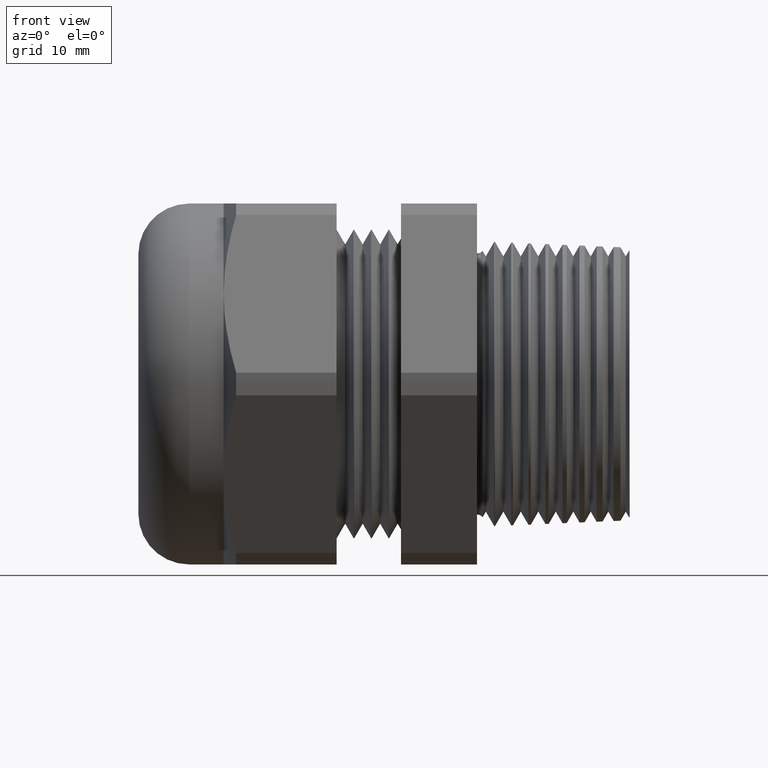
[diagram: clean part render]
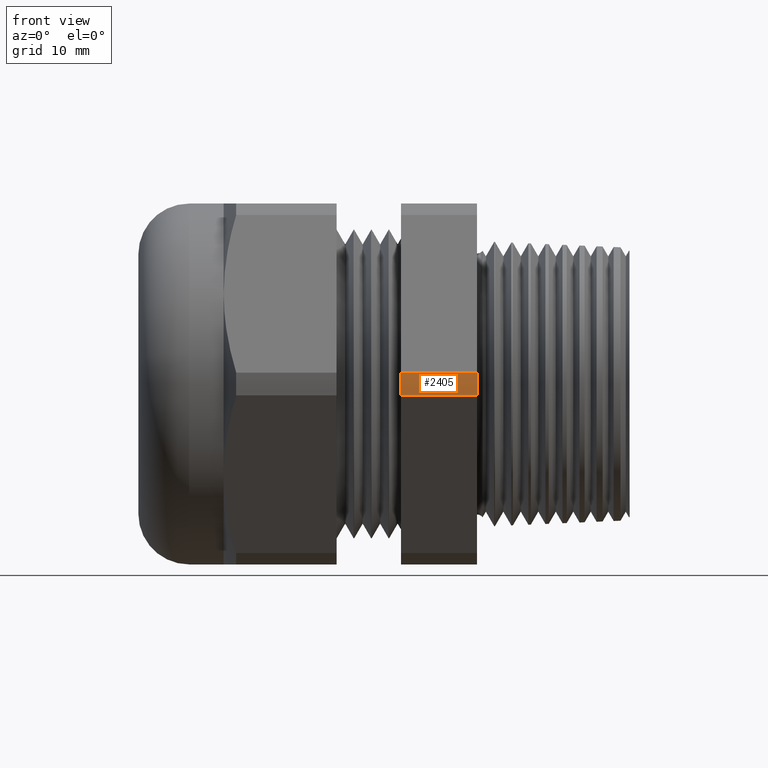
[diagram: same view with one face highlighted and labeled with its STEP entity id]
A machine part, front view. The second image highlights one B-rep face of the part: STEP entity #2405.
In plain terms, the highlighted cylindrical surface (partial cylindrical patch) has radius 18.4912 mm, axis along (-1, 0, 0).
Its self-contained STEP definition (entity closure, byte-faithful):
#302 = CARTESIAN_POINT ( 'NONE',  ( -0.2736318407960199300, -0.7268402752278256800, -0.04107571431805973800 ) ) ;
#348 = DIRECTION ( 'NONE',  ( 1.000000000000000000, 0.0000000000000000000, 0.0000000000000000000 ) ) ;
#349 = VECTOR ( 'NONE', #348, 39.37007874015748100 ) ;
#350 = CARTESIAN_POINT ( 'NONE',  ( -2.992185896283379200, -0.7268402752278255700, -0.04107571431805972400 ) ) ;
#351 = LINE ( 'NONE', #350, #349 ) ;
#352 = DIRECTION ( 'NONE',  ( 0.0000000000000000000, 0.0000000000000000000, 1.000000000000000000 ) ) ;
#353 = DIRECTION ( 'NONE',  ( -1.000000000000000000, 0.0000000000000000000, 0.0000000000000000000 ) ) ;
#354 = AXIS2_PLACEMENT_3D ( 'NONE', #356, #353, #352 ) ;
#355 = CYLINDRICAL_SURFACE ( 'NONE', #354, 0.7280000000000000900 ) ;
#356 = CARTESIAN_POINT ( 'NONE',  ( -0.7238591030180623300, 0.0000000000000000000, 0.0000000000000000000 ) ) ;
#357 = FACE_OUTER_BOUND ( 'NONE', #2407, .T. ) ;
#394 = DIRECTION ( 'NONE',  ( -1.000000000000000000, 0.0000000000000000000, 0.0000000000000000000 ) ) ;
#654 = DIRECTION ( 'NONE',  ( 0.0000000000000000000, 0.0000000000000000000, 1.000000000000000000 ) ) ;
#673 = CARTESIAN_POINT ( 'NONE',  ( 0.0000000000000000000, -0.7268402752278255700, -0.04107571431805972400 ) ) ;
#882 = CARTESIAN_POINT ( 'NONE',  ( 0.0000000000000000000, -0.7268402752278255700, 0.04107571431805941800 ) ) ;
#1565 = DIRECTION ( 'NONE',  ( 0.0000000000000000000, 0.0000000000000000000, 1.000000000000000000 ) ) ;
#1566 = DIRECTION ( 'NONE',  ( -1.000000000000000000, 0.0000000000000000000, 0.0000000000000000000 ) ) ;
#1567 = CARTESIAN_POINT ( 'NONE',  ( 0.0000000000000000000, 0.0000000000000000000, 0.0000000000000000000 ) ) ;
#1568 = AXIS2_PLACEMENT_3D ( 'NONE', #1567, #1566, #1565 ) ;
#1569 = CIRCLE ( 'NONE', #1568, 0.7280000000000000900 ) ;
#1687 = CARTESIAN_POINT ( 'NONE',  ( -0.2736318407960199300, 0.0000000000000000000, 0.0000000000000000000 ) ) ;
#1688 = AXIS2_PLACEMENT_3D ( 'NONE', #1687, #394, #654 ) ;
#1689 = CIRCLE ( 'NONE', #1688, 0.7280000000000000900 ) ;
#1690 = CARTESIAN_POINT ( 'NONE',  ( -0.2736318407960202100, -0.7268402752278255700, 0.04107571431805941800 ) ) ;
#1746 = DIRECTION ( 'NONE',  ( 1.000000000000000000, 0.0000000000000000000, 0.0000000000000000000 ) ) ;
#1747 = VECTOR ( 'NONE', #1746, 39.37007874015748100 ) ;
#1748 = CARTESIAN_POINT ( 'NONE',  ( -2.992185896283379200, -0.7268402752278255700, 0.04107571431805941800 ) ) ;
#1749 = LINE ( 'NONE', #1748, #1747 ) ;
#2403 = ORIENTED_EDGE ( 'NONE', *, *, #3149, .T. ) ;
#2404 = VERTEX_POINT ( 'NONE', #302 ) ;
#2405 = ADVANCED_FACE ( 'NONE', ( #357 ), #355, .T. ) ;
#2406 = EDGE_CURVE ( 'NONE', #2404, #2610, #351, .T. ) ;
#2407 = EDGE_LOOP ( 'NONE', ( #2408, #2403, #3455, #3453 ) ) ;
#2408 = ORIENTED_EDGE ( 'NONE', *, *, #2406, .T. ) ;
#2610 = VERTEX_POINT ( 'NONE', #673 ) ;
#2773 = VERTEX_POINT ( 'NONE', #882 ) ;
#3149 = EDGE_CURVE ( 'NONE', #2610, #2773, #1569, .T. ) ;
#3451 = VERTEX_POINT ( 'NONE', #1690 ) ;
#3452 = EDGE_CURVE ( 'NONE', #2404, #3451, #1689, .T. ) ;
#3453 = ORIENTED_EDGE ( 'NONE', *, *, #3452, .F. ) ;
#3454 = EDGE_CURVE ( 'NONE', #3451, #2773, #1749, .T. ) ;
#3455 = ORIENTED_EDGE ( 'NONE', *, *, #3454, .F. ) ;